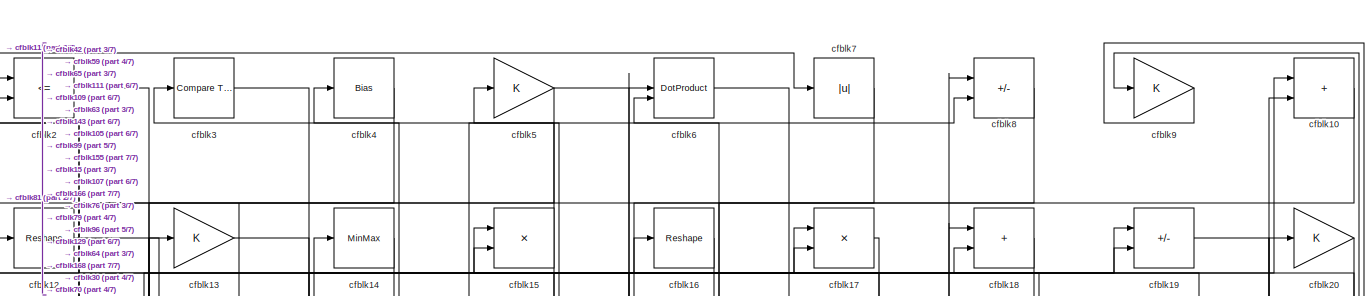
[diagram: root canvas - part 1/7, full width, top band]
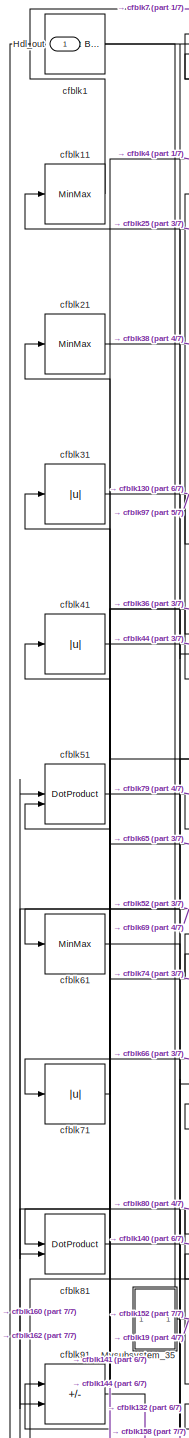
[diagram: root canvas - part 2/7, top left region]
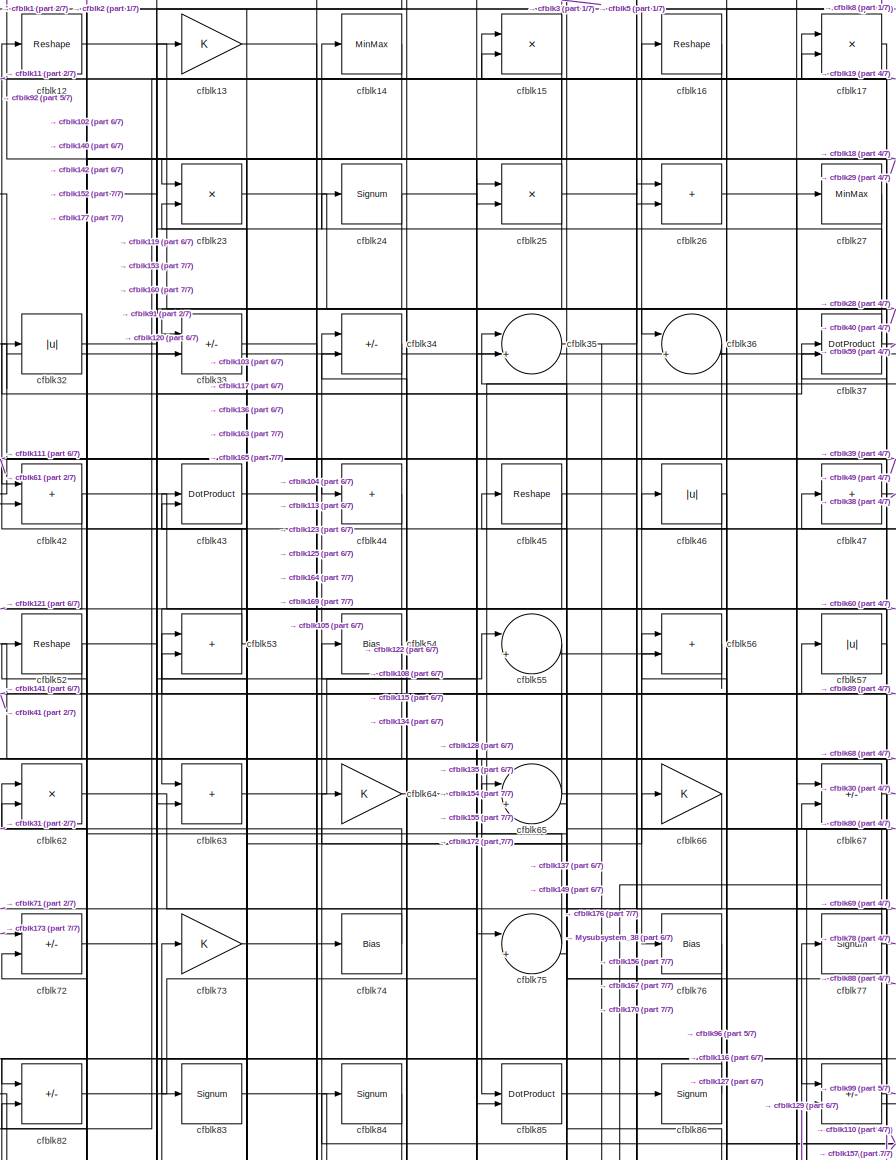
[diagram: root canvas - part 3/7, top center region]
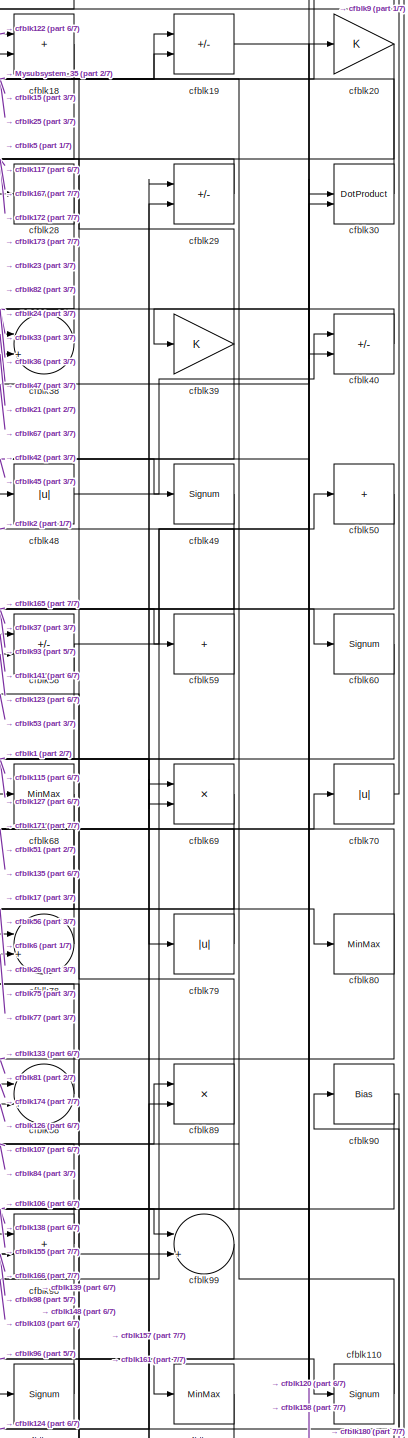
[diagram: root canvas - part 4/7, top right region]
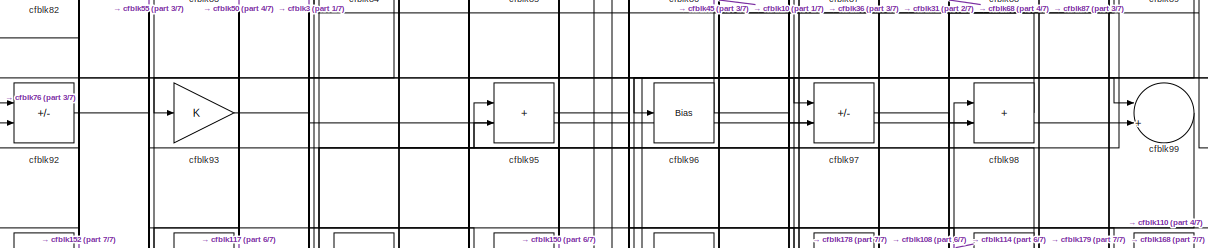
[diagram: root canvas - part 5/7, full width, middle band]
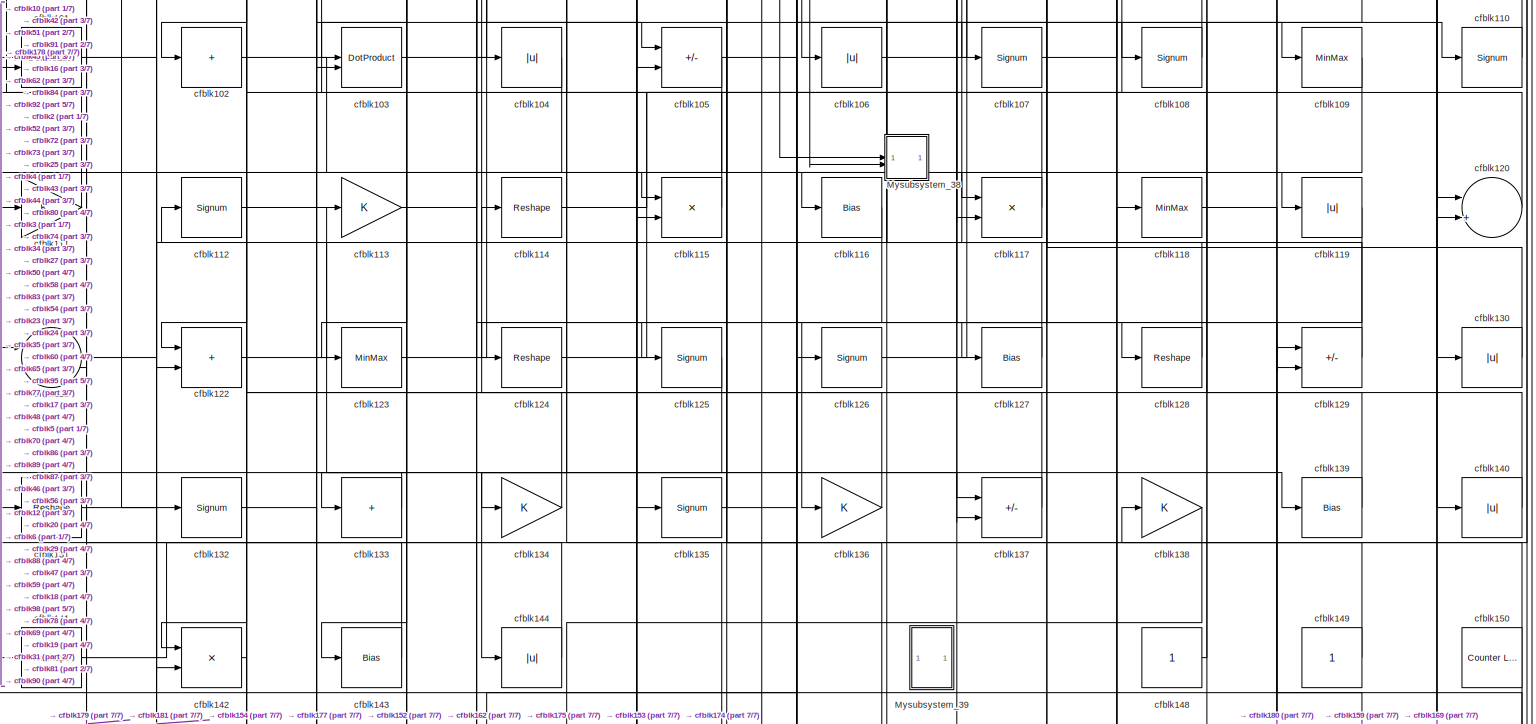
[diagram: root canvas - part 6/7, full width, middle band]
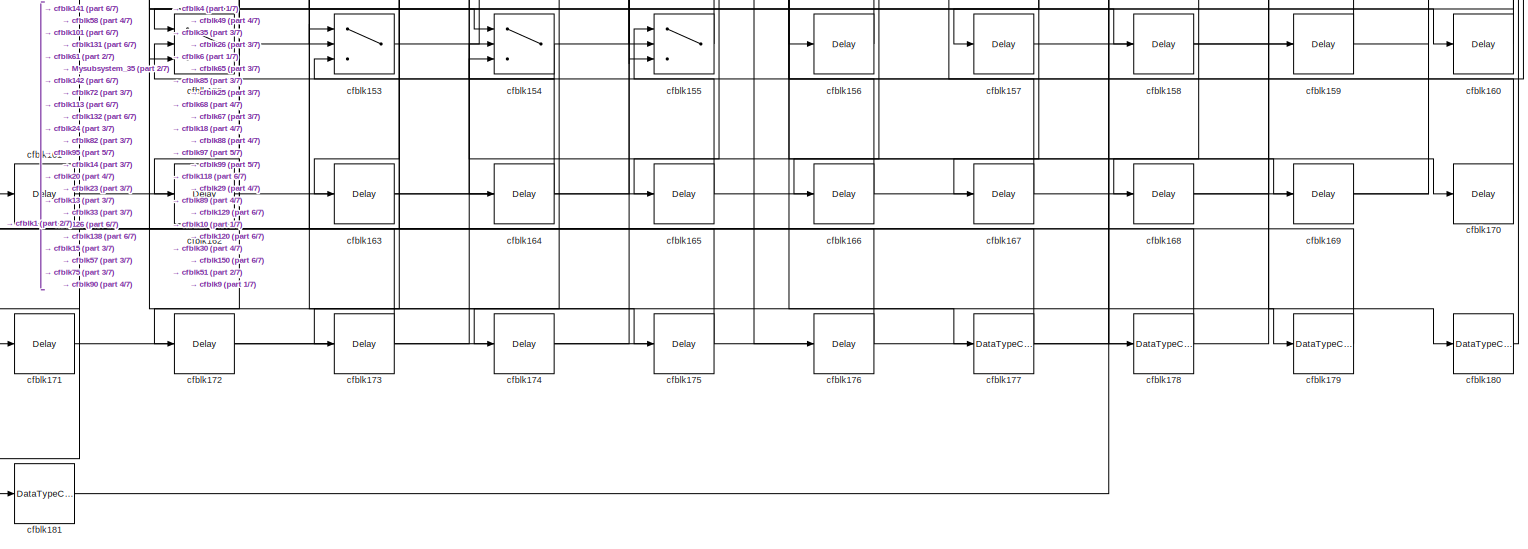
[diagram: root canvas - part 7/7, full width, bottom band]
MODEL slx_3e1aff8c9aef
KIND model
CONFIG AbsTol = auto
CONFIG EnableMultiTasking = off
CONFIG FixedStep = auto
CONFIG MaxStep = auto
CONFIG MinStep = auto
CONFIG RelTol = 1e-3
CONFIG SampleTimeConstraint = Unconstrained
CONFIG SolverName = VariableStepAuto
CONFIG StartTime = 0.0
CONFIG StopTime = 10.0
BLOCK [Outport] Hdl_out
  OutDataTypeStr = uint8
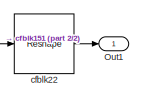
[diagram: Mysubsystem_35 - part 1/2, top right region]
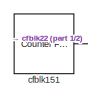
[diagram: Mysubsystem_35 - part 2/2, bottom left region]
BLOCK [SubSystem] Mysubsystem_35
  RTWFcnName = Mysubsystem_35
  RTWFcnNameOpts = User specified
  RTWFileNameOpts = Use function name
  RTWSystemCode = Reusable function
  TreatAsAtomicUnit = on
BLOCK [Outport] Mysubsystem_35/Out1
BLOCK [Reference] Mysubsystem_35/cfblk151  REF=hdlsllib/Sources/Counter
Free-Running
  SourceBlock = hdlsllib/Sources/Counter\nFree-Running
  SourceType = Counter Free-Running
BLOCK [Reshape] Mysubsystem_35/cfblk22
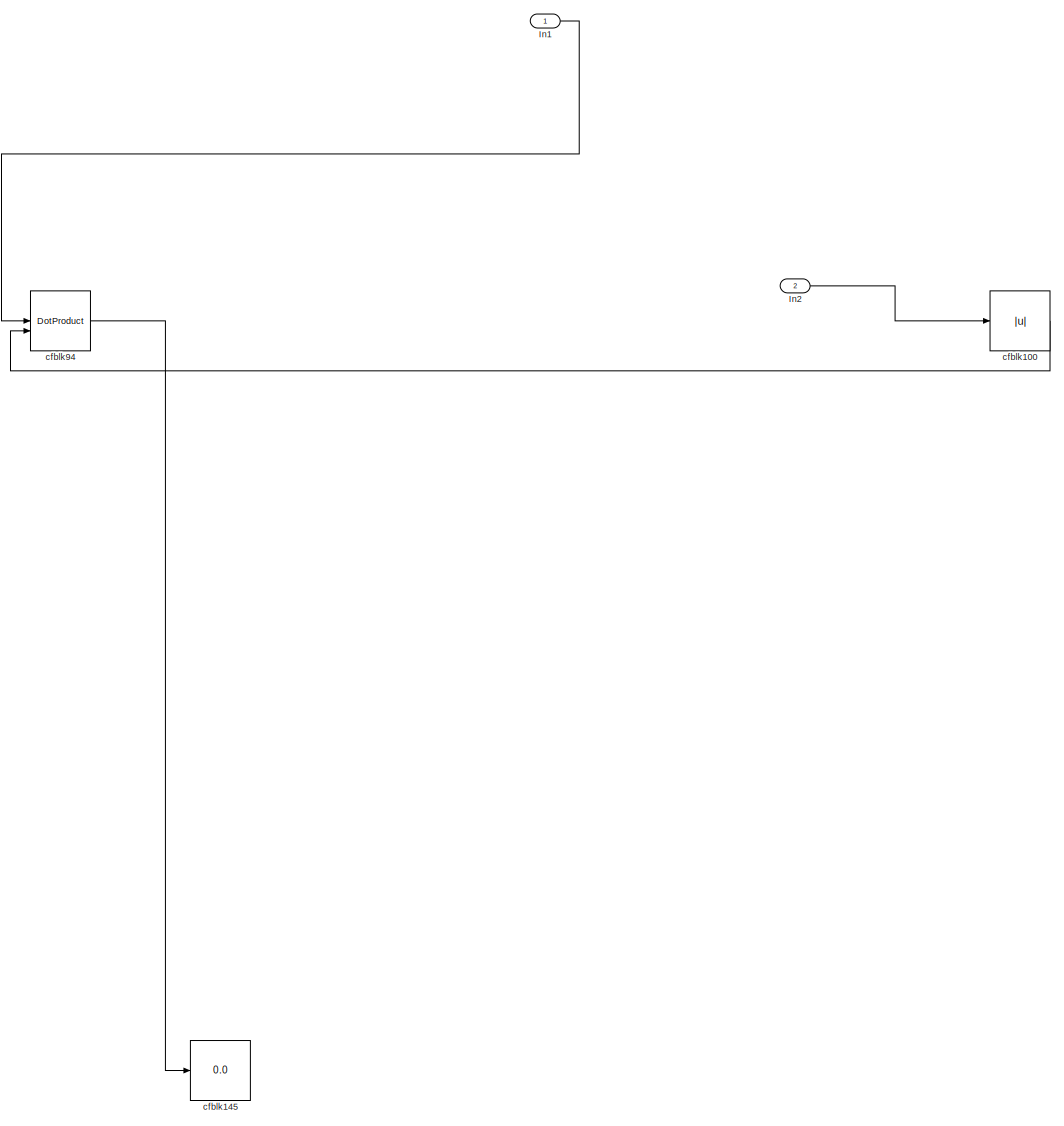
[diagram: Mysubsystem_38 - part 1/1, most of the canvas]
BLOCK [SubSystem] Mysubsystem_38
  RTWFcnName = Mysubsystem_38
  RTWFcnNameOpts = User specified
  RTWFileNameOpts = Use function name
  RTWSystemCode = Reusable function
  TreatAsAtomicUnit = on
BLOCK [Inport] Mysubsystem_38/In1
BLOCK [Inport] Mysubsystem_38/In2
  Port = 2
BLOCK [Abs] Mysubsystem_38/cfblk100
  SaturateOnIntegerOverflow = off
BLOCK [Display] Mysubsystem_38/cfblk145
  Decimation = 1
BLOCK [DotProduct] Mysubsystem_38/cfblk94
  OutDataTypeStr = Inherit: Inherit via internal rule
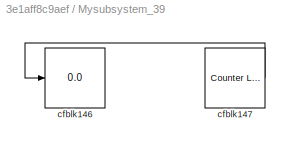
BLOCK [SubSystem] Mysubsystem_39
  RTWFcnName = Mysubsystem_39
  RTWFcnNameOpts = User specified
  RTWFileNameOpts = Use function name
  RTWSystemCode = Reusable function
  TreatAsAtomicUnit = on
BLOCK [Display] Mysubsystem_39/cfblk146
  Decimation = 1
BLOCK [Reference] Mysubsystem_39/cfblk147  REF=hdlsllib/Sources/Counter
Limited
  SourceBlock = hdlsllib/Sources/Counter\nLimited
  SourceType = Counter Limited
BLOCK [Reference] cfblk1  REF=simulink/Logic and Bit
Operations/Extract Bits
  LibrarySourceBlock = hdlsllib/Logic and Bit\nOperations/Extract Bits
  SourceBlock = simulink/Logic and Bit\nOperations/Extract Bits
  SourceType = Extract Bits
BLOCK [Sum] cfblk10
  IconShape = rectangular
  OutDataTypeStr = uint8
BLOCK [DotProduct] cfblk101
  OutDataTypeStr = uint8
BLOCK [Sum] cfblk102
  IconShape = rectangular
  Inputs = +
  OutDataTypeStr = uint8
BLOCK [DotProduct] cfblk103
  OutDataTypeStr = uint8
BLOCK [Abs] cfblk104
  OutDataTypeStr = uint8
  SaturateOnIntegerOverflow = off
BLOCK [Sum] cfblk105
  IconShape = rectangular
  Inputs = +-
  OutDataTypeStr = uint8
BLOCK [Abs] cfblk106
  OutDataTypeStr = uint8
  SaturateOnIntegerOverflow = off
BLOCK [Signum] cfblk107
BLOCK [Signum] cfblk108
BLOCK [MinMax] cfblk109
  OutDataTypeStr = uint8
BLOCK [MinMax] cfblk11
  OutDataTypeStr = uint8
BLOCK [Signum] cfblk110
BLOCK [Gain] cfblk111
  OutDataTypeStr = uint8
BLOCK [Signum] cfblk112
BLOCK [Gain] cfblk113
  OutDataTypeStr = uint8
BLOCK [Reshape] cfblk114
BLOCK [Product] cfblk115
  Inputs = */
  OutDataTypeStr = uint8
  RndMeth = Zero
  SaturateOnIntegerOverflow = on
BLOCK [Bias] cfblk116
  Bias = 0.0
  SaturateOnIntegerOverflow = off
BLOCK [Product] cfblk117
  Inputs = */
  OutDataTypeStr = uint8
  RndMeth = Zero
  SaturateOnIntegerOverflow = on
BLOCK [MinMax] cfblk118
  OutDataTypeStr = uint8
BLOCK [Abs] cfblk119
  OutDataTypeStr = uint8
  SaturateOnIntegerOverflow = off
BLOCK [Reshape] cfblk12
BLOCK [Sum] cfblk120
  Inputs = |++
  OutDataTypeStr = uint8
BLOCK [Sum] cfblk121
  Inputs = |++
  OutDataTypeStr = uint8
BLOCK [Sum] cfblk122
  IconShape = rectangular
  OutDataTypeStr = uint8
BLOCK [MinMax] cfblk123
  OutDataTypeStr = uint8
BLOCK [Reshape] cfblk124
BLOCK [Signum] cfblk125
BLOCK [Signum] cfblk126
BLOCK [Bias] cfblk127
  Bias = 0.0
  SaturateOnIntegerOverflow = off
BLOCK [Reshape] cfblk128
BLOCK [Sum] cfblk129
  IconShape = rectangular
  Inputs = +-
  OutDataTypeStr = uint8
BLOCK [Gain] cfblk13
  OutDataTypeStr = uint8
BLOCK [Abs] cfblk130
  OutDataTypeStr = uint8
  SaturateOnIntegerOverflow = off
BLOCK [Reshape] cfblk131
BLOCK [Signum] cfblk132
BLOCK [Sum] cfblk133
  IconShape = rectangular
  Inputs = +
  OutDataTypeStr = uint8
BLOCK [Gain] cfblk134
  OutDataTypeStr = uint8
BLOCK [Signum] cfblk135
BLOCK [Gain] cfblk136
  OutDataTypeStr = uint8
BLOCK [Sum] cfblk137
  IconShape = rectangular
  Inputs = +-
  OutDataTypeStr = uint8
BLOCK [Gain] cfblk138
  OutDataTypeStr = uint8
BLOCK [Bias] cfblk139
  Bias = 0.0
  SaturateOnIntegerOverflow = off
BLOCK [MinMax] cfblk14
  OutDataTypeStr = uint8
BLOCK [Abs] cfblk140
  OutDataTypeStr = uint8
  SaturateOnIntegerOverflow = off
BLOCK [Reshape] cfblk141
BLOCK [Product] cfblk142
  Inputs = */
  OutDataTypeStr = uint8
  RndMeth = Zero
  SaturateOnIntegerOverflow = on
BLOCK [Bias] cfblk143
  Bias = 0.0
  SaturateOnIntegerOverflow = off
BLOCK [Abs] cfblk144
  OutDataTypeStr = uint8
  SaturateOnIntegerOverflow = off
BLOCK [Constant] cfblk148
  OutDataTypeStr = uint8
  SampleTime = -1
BLOCK [Constant] cfblk149
  OutDataTypeStr = uint8
  SampleTime = -1
BLOCK [Product] cfblk15
  Inputs = */
  OutDataTypeStr = uint8
  RndMeth = Zero
  SaturateOnIntegerOverflow = on
BLOCK [Reference] cfblk150  REF=hdlsllib/Sources/Counter
Limited
  SourceBlock = hdlsllib/Sources/Counter\nLimited
  SourceType = Counter Limited
BLOCK [Switch] cfblk152
  InputSameDT = off
  OutDataTypeStr = uint8
  SaturateOnIntegerOverflow = off
BLOCK [Switch] cfblk153
  InputSameDT = off
  OutDataTypeStr = uint8
  SaturateOnIntegerOverflow = off
BLOCK [Switch] cfblk154
  InputSameDT = off
  OutDataTypeStr = uint8
  SaturateOnIntegerOverflow = off
BLOCK [Switch] cfblk155
  InputSameDT = off
  OutDataTypeStr = uint8
  SaturateOnIntegerOverflow = off
BLOCK [Delay] cfblk156
  InputPortMap = u0
  SampleTime = 1
BLOCK [Delay] cfblk157
  InputPortMap = u0
  SampleTime = 1
BLOCK [Delay] cfblk158
  InputPortMap = u0
  SampleTime = 1
BLOCK [Delay] cfblk159
  InputPortMap = u0
  SampleTime = 1
BLOCK [Reshape] cfblk16
BLOCK [Delay] cfblk160
  InputPortMap = u0
  SampleTime = 1
BLOCK [Delay] cfblk161
  InputPortMap = u0
  SampleTime = 1
BLOCK [Delay] cfblk162
  InputPortMap = u0
  SampleTime = 1
BLOCK [Delay] cfblk163
  InputPortMap = u0
  SampleTime = 1
BLOCK [Delay] cfblk164
  InputPortMap = u0
  SampleTime = 1
BLOCK [Delay] cfblk165
  InputPortMap = u0
  SampleTime = 1
BLOCK [Delay] cfblk166
  InputPortMap = u0
  SampleTime = 1
BLOCK [Delay] cfblk167
  InputPortMap = u0
  SampleTime = 1
BLOCK [Delay] cfblk168
  InputPortMap = u0
  SampleTime = 1
BLOCK [Delay] cfblk169
  InputPortMap = u0
  SampleTime = 1
BLOCK [Product] cfblk17
  Inputs = */
  OutDataTypeStr = uint8
  RndMeth = Zero
  SaturateOnIntegerOverflow = on
BLOCK [Delay] cfblk170
  InputPortMap = u0
  SampleTime = 1
BLOCK [Delay] cfblk171
  InputPortMap = u0
  SampleTime = 1
BLOCK [Delay] cfblk172
  InputPortMap = u0
  SampleTime = 1
BLOCK [Delay] cfblk173
  InputPortMap = u0
  SampleTime = 1
BLOCK [Delay] cfblk174
  InputPortMap = u0
  SampleTime = 1
BLOCK [Delay] cfblk175
  InputPortMap = u0
  SampleTime = 1
BLOCK [Delay] cfblk176
  InputPortMap = u0
  SampleTime = 1
BLOCK [DataTypeConversion] cfblk177
  OutDataTypeStr = uint8
  RndMeth = Floor
  SaturateOnIntegerOverflow = off
BLOCK [DataTypeConversion] cfblk178
  OutDataTypeStr = uint8
  RndMeth = Floor
  SaturateOnIntegerOverflow = off
BLOCK [DataTypeConversion] cfblk179
  OutDataTypeStr = uint8
  RndMeth = Floor
  SaturateOnIntegerOverflow = off
BLOCK [Sum] cfblk18
  IconShape = rectangular
  OutDataTypeStr = uint8
BLOCK [DataTypeConversion] cfblk180
  OutDataTypeStr = uint8
  RndMeth = Floor
  SaturateOnIntegerOverflow = off
BLOCK [DataTypeConversion] cfblk181
  OutDataTypeStr = uint8
  RndMeth = Floor
  SaturateOnIntegerOverflow = off
BLOCK [Sum] cfblk19
  IconShape = rectangular
  Inputs = +-
  OutDataTypeStr = uint8
BLOCK [RelationalOperator] cfblk2
  InputSameDT = off
  Operator = <=
  OutDataTypeStr = boolean
BLOCK [Gain] cfblk20
  OutDataTypeStr = uint8
BLOCK [MinMax] cfblk21
  OutDataTypeStr = uint8
BLOCK [Product] cfblk23
  Inputs = */
  OutDataTypeStr = uint8
  RndMeth = Zero
  SaturateOnIntegerOverflow = on
BLOCK [Signum] cfblk24
BLOCK [Product] cfblk25
  Inputs = */
  OutDataTypeStr = uint8
  RndMeth = Zero
  SaturateOnIntegerOverflow = on
BLOCK [Sum] cfblk26
  IconShape = rectangular
  OutDataTypeStr = uint8
BLOCK [MinMax] cfblk27
  OutDataTypeStr = uint8
BLOCK [MinMax] cfblk28
  OutDataTypeStr = uint8
BLOCK [Sum] cfblk29
  IconShape = rectangular
  Inputs = +-
  OutDataTypeStr = uint8
BLOCK [Reference] cfblk3  REF=hdlsllib/Logic and Bit
Operations/Compare
To Zero
  SourceBlock = hdlsllib/Logic and Bit\nOperations/Compare\nTo Zero
  SourceType = Compare To Zero
BLOCK [DotProduct] cfblk30
  OutDataTypeStr = uint8
BLOCK [Abs] cfblk31
  OutDataTypeStr = uint8
  SaturateOnIntegerOverflow = off
BLOCK [Abs] cfblk32
  OutDataTypeStr = uint8
  SaturateOnIntegerOverflow = off
BLOCK [Sum] cfblk33
  IconShape = rectangular
  Inputs = +-
  OutDataTypeStr = uint8
BLOCK [Sum] cfblk34
  IconShape = rectangular
  Inputs = +-
  OutDataTypeStr = uint8
BLOCK [Sum] cfblk35
  Inputs = |++
  OutDataTypeStr = uint8
BLOCK [Sum] cfblk36
  Inputs = |++
  OutDataTypeStr = uint8
BLOCK [DotProduct] cfblk37
  OutDataTypeStr = uint8
BLOCK [Sum] cfblk38
  Inputs = |++
  OutDataTypeStr = uint8
BLOCK [Gain] cfblk39
  OutDataTypeStr = uint8
BLOCK [Bias] cfblk4
  Bias = 0.0
  SaturateOnIntegerOverflow = off
BLOCK [Sum] cfblk40
  IconShape = rectangular
  Inputs = +-
  OutDataTypeStr = uint8
BLOCK [Abs] cfblk41
  OutDataTypeStr = uint8
  SaturateOnIntegerOverflow = off
BLOCK [Sum] cfblk42
  IconShape = rectangular
  OutDataTypeStr = uint8
BLOCK [DotProduct] cfblk43
  OutDataTypeStr = uint8
BLOCK [Sum] cfblk44
  IconShape = rectangular
  Inputs = +
  OutDataTypeStr = uint8
BLOCK [Reshape] cfblk45
BLOCK [Abs] cfblk46
  OutDataTypeStr = uint8
  SaturateOnIntegerOverflow = off
BLOCK [Sum] cfblk47
  IconShape = rectangular
  Inputs = +
  OutDataTypeStr = uint8
BLOCK [Abs] cfblk48
  OutDataTypeStr = uint8
  SaturateOnIntegerOverflow = off
BLOCK [Signum] cfblk49
BLOCK [Gain] cfblk5
  OutDataTypeStr = uint8
BLOCK [Sum] cfblk50
  IconShape = rectangular
  Inputs = +
  OutDataTypeStr = uint8
BLOCK [DotProduct] cfblk51
  OutDataTypeStr = uint8
BLOCK [Reshape] cfblk52
BLOCK [Sum] cfblk53
  IconShape = rectangular
  OutDataTypeStr = uint8
BLOCK [Bias] cfblk54
  Bias = 0.0
  SaturateOnIntegerOverflow = off
BLOCK [Sum] cfblk55
  Inputs = |++
  OutDataTypeStr = uint8
BLOCK [Sum] cfblk56
  IconShape = rectangular
  OutDataTypeStr = uint8
BLOCK [Abs] cfblk57
  OutDataTypeStr = uint8
  SaturateOnIntegerOverflow = off
BLOCK [Sum] cfblk58
  IconShape = rectangular
  Inputs = +-
  OutDataTypeStr = uint8
BLOCK [Sum] cfblk59
  IconShape = rectangular
  Inputs = +
  OutDataTypeStr = uint8
BLOCK [DotProduct] cfblk6
  OutDataTypeStr = uint8
BLOCK [Signum] cfblk60
BLOCK [MinMax] cfblk61
  OutDataTypeStr = uint8
BLOCK [Product] cfblk62
  Inputs = */
  OutDataTypeStr = uint8
  RndMeth = Zero
  SaturateOnIntegerOverflow = on
BLOCK [Sum] cfblk63
  IconShape = rectangular
  OutDataTypeStr = uint8
BLOCK [Gain] cfblk64
  OutDataTypeStr = uint8
BLOCK [Sum] cfblk65
  Inputs = |++
  OutDataTypeStr = uint8
BLOCK [Gain] cfblk66
  OutDataTypeStr = uint8
BLOCK [Sum] cfblk67
  IconShape = rectangular
  Inputs = +-
  OutDataTypeStr = uint8
BLOCK [MinMax] cfblk68
  OutDataTypeStr = uint8
BLOCK [Product] cfblk69
  Inputs = */
  OutDataTypeStr = uint8
  RndMeth = Zero
  SaturateOnIntegerOverflow = on
BLOCK [Abs] cfblk7
  OutDataTypeStr = uint8
  SaturateOnIntegerOverflow = off
BLOCK [Abs] cfblk70
  OutDataTypeStr = uint8
  SaturateOnIntegerOverflow = off
BLOCK [Abs] cfblk71
  OutDataTypeStr = uint8
  SaturateOnIntegerOverflow = off
BLOCK [Sum] cfblk72
  IconShape = rectangular
  Inputs = +-
  OutDataTypeStr = uint8
BLOCK [Gain] cfblk73
  OutDataTypeStr = uint8
BLOCK [Bias] cfblk74
  Bias = 0.0
  SaturateOnIntegerOverflow = off
BLOCK [Sum] cfblk75
  Inputs = |++
  OutDataTypeStr = uint8
BLOCK [Bias] cfblk76
  Bias = 0.0
  SaturateOnIntegerOverflow = off
BLOCK [Signum] cfblk77
BLOCK [Sum] cfblk78
  Inputs = |++
  OutDataTypeStr = uint8
BLOCK [Abs] cfblk79
  OutDataTypeStr = uint8
  SaturateOnIntegerOverflow = off
BLOCK [Sum] cfblk8
  IconShape = rectangular
  Inputs = +-
  OutDataTypeStr = uint8
BLOCK [MinMax] cfblk80
  OutDataTypeStr = uint8
BLOCK [DotProduct] cfblk81
  OutDataTypeStr = uint8
BLOCK [Sum] cfblk82
  IconShape = rectangular
  Inputs = +-
  OutDataTypeStr = uint8
BLOCK [Signum] cfblk83
BLOCK [Signum] cfblk84
BLOCK [DotProduct] cfblk85
  OutDataTypeStr = uint8
BLOCK [Signum] cfblk86
BLOCK [Sum] cfblk87
  IconShape = rectangular
  Inputs = +-
  OutDataTypeStr = uint8
BLOCK [Sum] cfblk88
  Inputs = |++
  OutDataTypeStr = uint8
BLOCK [Product] cfblk89
  Inputs = */
  OutDataTypeStr = uint8
  RndMeth = Zero
  SaturateOnIntegerOverflow = on
BLOCK [Gain] cfblk9
  OutDataTypeStr = uint8
BLOCK [Bias] cfblk90
  Bias = 0.0
  SaturateOnIntegerOverflow = off
BLOCK [Sum] cfblk91
  IconShape = rectangular
  Inputs = +-
  OutDataTypeStr = uint8
BLOCK [Sum] cfblk92
  IconShape = rectangular
  Inputs = +-
  OutDataTypeStr = uint8
BLOCK [Gain] cfblk93
  OutDataTypeStr = uint8
BLOCK [Sum] cfblk95
  IconShape = rectangular
  OutDataTypeStr = uint8
BLOCK [Bias] cfblk96
  Bias = 0.0
  SaturateOnIntegerOverflow = off
BLOCK [Sum] cfblk97
  IconShape = rectangular
  Inputs = +-
  OutDataTypeStr = uint8
BLOCK [Sum] cfblk98
  IconShape = rectangular
  OutDataTypeStr = uint8
BLOCK [Sum] cfblk99
  Inputs = |++
  OutDataTypeStr = uint8
LINE Mysubsystem_35/cfblk151:1 -> Mysubsystem_35/cfblk22:1
LINE Mysubsystem_35/cfblk22:1 -> Mysubsystem_35/Out1:1
NET Mysubsystem_35:1 -> Hdl_out:1, cfblk152:1, cfblk19:1
LINE Mysubsystem_38/In1:1 -> Mysubsystem_38/cfblk94:1
LINE Mysubsystem_38/In2:1 -> Mysubsystem_38/cfblk100:1
LINE Mysubsystem_38/cfblk100:1 -> Mysubsystem_38/cfblk94:2
LINE Mysubsystem_38/cfblk94:1 -> Mysubsystem_38/cfblk145:1
LINE Mysubsystem_39/cfblk147:1 -> Mysubsystem_39/cfblk146:1
LINE cfblk101:1 -> cfblk177:1
LINE cfblk102:1 -> cfblk115:2
LINE cfblk103:1 -> cfblk50:1
LINE cfblk104:1 -> cfblk142:1
NET cfblk105:1 -> cfblk117:1, cfblk142:2
LINE cfblk106:1 -> cfblk29:1
LINE cfblk107:1 -> cfblk89:1
LINE cfblk108:1 -> cfblk34:2
LINE cfblk109:1 -> cfblk141:1
LINE cfblk10:1 -> cfblk96:1
NET cfblk110:1 -> cfblk15:2, cfblk84:1
LINE cfblk111:1 -> cfblk10:1
LINE cfblk112:1 -> cfblk139:1
LINE cfblk113:1 -> cfblk74:1
LINE cfblk114:1 -> cfblk98:1
LINE cfblk115:1 -> cfblk54:1
LINE cfblk116:1 -> cfblk124:1
NET cfblk117:1 -> cfblk43:2, cfblk92:2
LINE cfblk118:1 -> cfblk180:1
LINE cfblk119:1 -> cfblk136:1
LINE cfblk11:1 -> cfblk7:1
LINE cfblk120:1 -> cfblk73:1
LINE cfblk121:1 -> cfblk114:1
LINE cfblk122:1 -> cfblk18:1
NET cfblk123:1 -> cfblk27:1, cfblk58:2
LINE cfblk124:1 -> cfblk69:1
LINE cfblk125:1 -> cfblk144:1
LINE cfblk126:1 -> cfblk88:2
LINE cfblk127:1 -> cfblk46:1
LINE cfblk128:1 -> cfblk56:2
LINE cfblk129:1 -> cfblk77:1
NET cfblk12:1 -> cfblk137:1, cfblk87:2
LINE cfblk130:1 -> cfblk47:1
LINE cfblk131:1 -> cfblk154:1
LINE cfblk132:1 -> cfblk175:1
LINE cfblk133:1 -> cfblk131:1
LINE cfblk134:1 -> cfblk112:1
NET cfblk135:1 -> cfblk35:1, cfblk48:1, cfblk70:1
LINE cfblk136:1 -> cfblk43:1
NET cfblk137:1 -> cfblk34:1, cfblk65:2
LINE cfblk138:1 -> cfblk174:1
LINE cfblk139:1 -> cfblk18:2
LINE cfblk13:1 -> cfblk164:1
LINE cfblk140:1 -> cfblk62:1
NET cfblk141:1 -> cfblk17:2, cfblk181:1, cfblk58:1, cfblk86:1, cfblk91:1
NET cfblk142:1 -> cfblk162:1, cfblk62:2
LINE cfblk143:1 -> cfblk121:1
LINE cfblk144:1 -> cfblk51:2
LINE cfblk148:1 -> cfblk78:1
LINE cfblk149:1 -> cfblk65:1
LINE cfblk14:1 -> cfblk163:1
NET cfblk150:1 -> cfblk152:3, cfblk95:1
NET cfblk152:1 -> cfblk113:1, cfblk72:2, cfblk95:2
LINE cfblk153:1 -> cfblk126:1
NET cfblk154:1 -> cfblk152:2, cfblk57:1
LINE cfblk155:1 -> cfblk4:1
LINE cfblk156:1 -> cfblk25:1
LINE cfblk157:1 -> cfblk89:2
LINE cfblk158:1 -> cfblk30:2
LINE cfblk159:1 -> cfblk129:1
NET cfblk15:1 -> cfblk155:2, cfblk33:2, cfblk3:1
LINE cfblk160:1 -> cfblk51:1
LINE cfblk161:1 -> cfblk29:2
LINE cfblk162:1 -> cfblk1:1
LINE cfblk163:1 -> cfblk35:2
LINE cfblk164:1 -> cfblk154:2
LINE cfblk165:1 -> cfblk23:2
LINE cfblk166:1 -> cfblk6:1
LINE cfblk167:1 -> cfblk26:1
LINE cfblk168:1 -> cfblk10:2
LINE cfblk169:1 -> cfblk120:2
LINE cfblk16:1 -> cfblk102:1
LINE cfblk170:1 -> cfblk67:1
LINE cfblk171:1 -> cfblk154:3
LINE cfblk172:1 -> cfblk75:1
LINE cfblk173:1 -> cfblk72:1
LINE cfblk174:1 -> cfblk88:1
LINE cfblk175:1 -> cfblk153:1
LINE cfblk176:1 -> cfblk153:3
NET cfblk177:1 -> cfblk159:1, cfblk161:1, cfblk82:2
LINE cfblk178:1 -> cfblk101:1
LINE cfblk179:1 -> cfblk101:2
LINE cfblk17:1 -> cfblk87:1
LINE cfblk180:1 -> cfblk90:1
LINE cfblk181:1 -> cfblk118:1
NET cfblk18:1 -> cfblk167:1, cfblk82:1
LINE cfblk19:1 -> cfblk120:1
NET cfblk1:1 -> cfblk25:2, cfblk69:2
NET cfblk20:1 -> cfblk117:2, cfblk172:1, cfblk173:1
LINE cfblk21:1 -> cfblk38:2
LINE cfblk23:1 -> cfblk135:1
NET cfblk24:1 -> cfblk128:1, cfblk153:2, cfblk40:2
NET cfblk25:1 -> cfblk11:1, cfblk123:1, cfblk19:2
LINE cfblk26:1 -> cfblk80:1
LINE cfblk27:1 -> cfblk134:1
LINE cfblk28:1 -> cfblk33:1
LINE cfblk29:1 -> cfblk23:1
LINE cfblk2:1 -> cfblk109:1
LINE cfblk30:1 -> cfblk5:1
NET cfblk31:1 -> cfblk130:1, cfblk97:2
LINE cfblk32:1 -> cfblk24:1
LINE cfblk33:1 -> cfblk169:1
LINE cfblk34:1 -> cfblk111:1
NET cfblk35:1 -> cfblk176:1, cfblk26:2
LINE cfblk36:1 -> cfblk61:1
NET cfblk37:1 -> cfblk14:1, cfblk59:1
LINE cfblk38:1 -> cfblk36:1
NET cfblk39:1 -> cfblk28:1, cfblk42:2
NET cfblk3:1 -> cfblk105:2, cfblk99:2
LINE cfblk40:1 -> cfblk39:1
LINE cfblk41:1 -> cfblk44:1
NET cfblk42:1 -> cfblk121:2, cfblk60:1
NET cfblk43:1 -> cfblk104:1, cfblk16:1
LINE cfblk44:1 -> cfblk103:1
NET cfblk45:1 -> cfblk122:2, cfblk49:1, cfblk68:1
NET cfblk46:1 -> cfblk116:1, cfblk63:1
LINE cfblk47:1 -> cfblk38:1
LINE cfblk48:1 -> cfblk40:1
LINE cfblk49:1 -> cfblk165:1
NET cfblk4:1 -> cfblk143:1, cfblk81:1
LINE cfblk50:1 -> cfblk93:1
LINE cfblk51:1 -> cfblk79:1
NET cfblk52:1 -> cfblk137:2, cfblk13:1, cfblk91:2
NET cfblk53:1 -> cfblk12:1, cfblk83:1
LINE cfblk54:1 -> cfblk103:2
LINE cfblk55:1 -> cfblk85:1
LINE cfblk56:1 -> cfblk55:2
LINE cfblk57:1 -> cfblk157:1
NET cfblk58:1 -> cfblk171:1, cfblk20:1
NET cfblk59:1 -> cfblk127:1, cfblk2:2
NET cfblk5:1 -> cfblk107:1, cfblk63:2
LINE cfblk60:1 -> cfblk115:1
LINE cfblk61:1 -> cfblk158:1
LINE cfblk62:1 -> cfblk85:2
LINE cfblk63:1 -> cfblk8:2
LINE cfblk64:1 -> cfblk8:1
NET cfblk65:1 -> cfblk170:1, cfblk2:1, cfblk41:1
LINE cfblk66:1 -> cfblk71:1
LINE cfblk67:1 -> cfblk30:1
NET cfblk68:1 -> cfblk166:1, cfblk98:2
LINE cfblk69:1 -> cfblk75:2
LINE cfblk6:1 -> cfblk129:2
LINE cfblk70:1 -> cfblk9:1
LINE cfblk71:1 -> cfblk21:1
NET cfblk72:1 -> cfblk119:1, cfblk37:1
LINE cfblk73:1 -> cfblk125:1
LINE cfblk74:1 -> cfblk31:1
NET cfblk75:1 -> cfblk52:1, cfblk53:1
LINE cfblk76:1 -> cfblk92:1
NET cfblk77:1 -> Mysubsystem_38:1, cfblk32:1, cfblk78:2
LINE cfblk78:1 -> cfblk56:1
LINE cfblk79:1 -> cfblk6:2
LINE cfblk7:1 -> cfblk76:1
NET cfblk80:1 -> cfblk133:1, cfblk17:1, cfblk37:2, cfblk81:2
LINE cfblk81:1 -> cfblk140:1
NET cfblk82:1 -> cfblk160:1, cfblk66:1
LINE cfblk83:1 -> cfblk105:1
LINE cfblk84:1 -> cfblk122:1
LINE cfblk85:1 -> cfblk156:1
LINE cfblk86:1 -> cfblk15:1
NET cfblk87:1 -> Mysubsystem_38:2, cfblk64:1, cfblk99:1
LINE cfblk88:1 -> cfblk67:2
NET cfblk89:1 -> cfblk106:1, cfblk53:2
LINE cfblk8:1 -> cfblk42:1
NET cfblk90:1 -> cfblk138:1, cfblk155:3
LINE cfblk91:1 -> cfblk132:1
LINE cfblk92:1 -> cfblk55:1
LINE cfblk93:1 -> cfblk97:1
NET cfblk95:1 -> cfblk108:1, cfblk179:1
NET cfblk96:1 -> cfblk110:1, cfblk45:1
LINE cfblk97:1 -> cfblk178:1
LINE cfblk98:1 -> cfblk36:2
LINE cfblk99:1 -> cfblk168:1
LINE cfblk9:1 -> cfblk155:1
note: NET lines group one-source signal fan-out (src -> all destinations, sorted); 1:1 wires keep LINE
